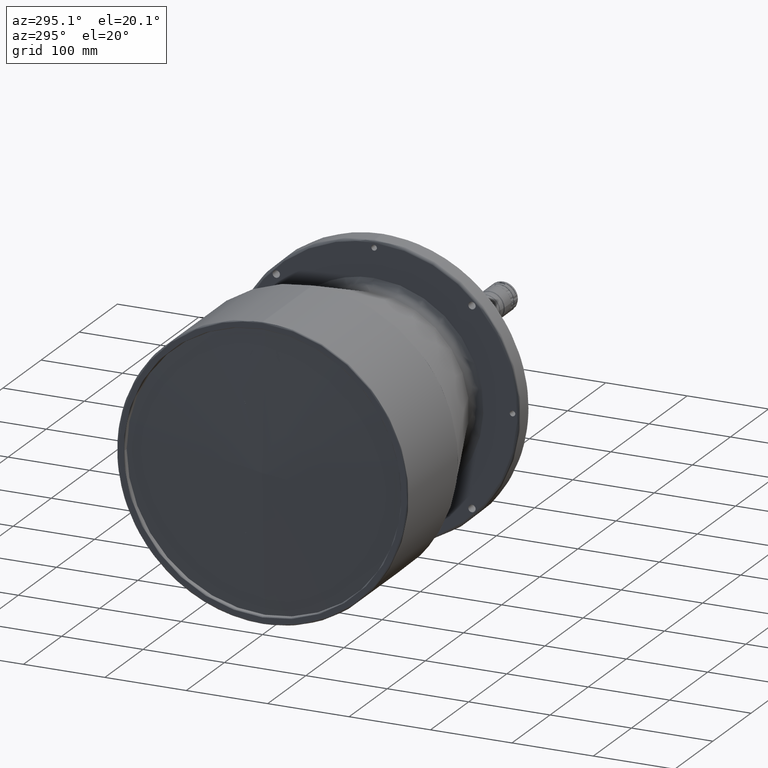
[diagram: clean part render]
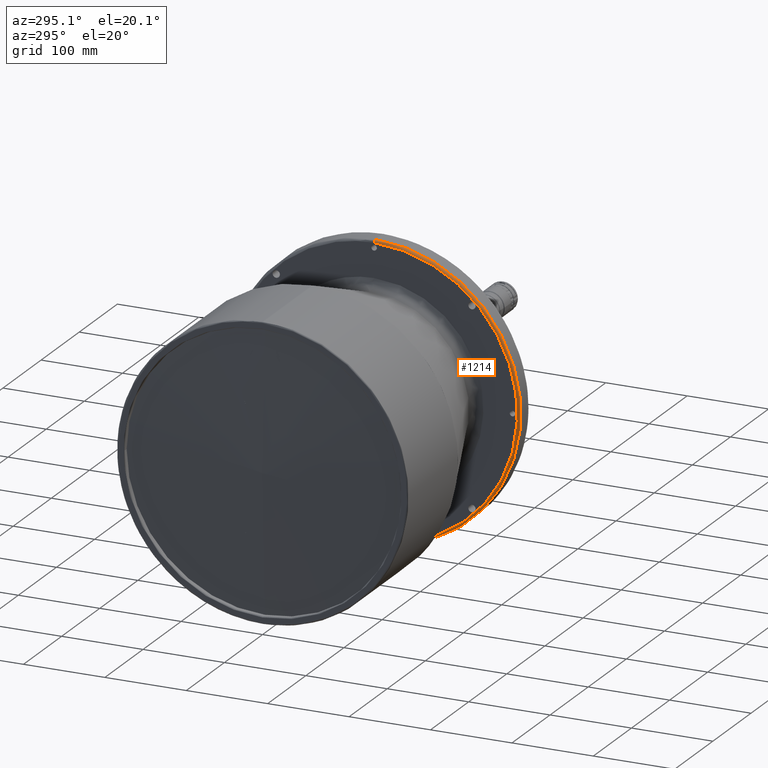
[diagram: same view with one face highlighted and labeled with its STEP entity id]
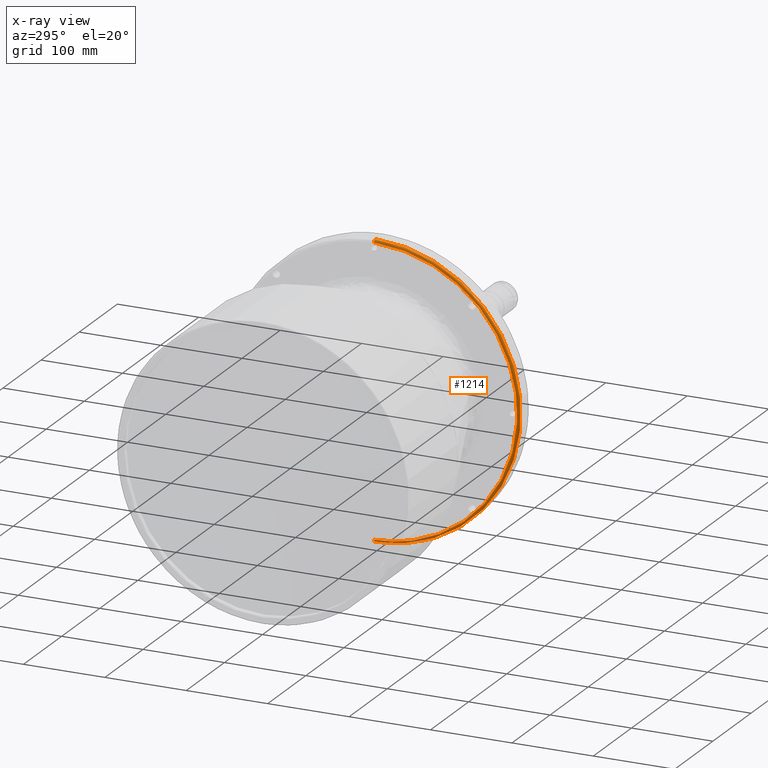
[diagram: x-ray of the same camera — body ghosted, the highlighted face saturated]
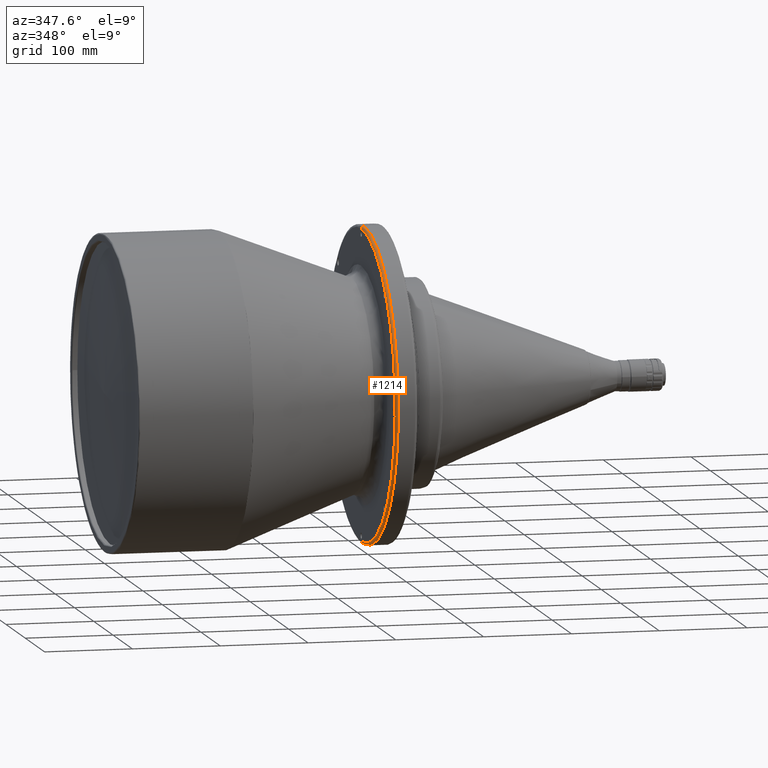
[diagram: same view with one face highlighted and labeled with its STEP entity id]
A machine part, auxiliary view. The second image highlights one B-rep face of the part: STEP entity #1214.
The next image is the same camera in x-ray: the body ghosted, the highlighted face saturated — about 8% of this face is hidden behind the body in this view.
A second angle (auxiliary view) of the same face is appended — the face is thin or edge-on in the first view.
In plain terms, the highlighted face is a freeform B-spline surface patch.
Its self-contained STEP definition (entity closure, byte-faithful):
#250 = CARTESIAN_POINT ( 'NONE',  ( 292.5149875040000300, 0.0000000000000000000, 175.7004997500000100 ) ) ;
#279 = CARTESIAN_POINT ( 'NONE',  ( 295.7995002499999400, 0.0000000000000000000, 178.9850124960000000 ) ) ;
#418 = CARTESIAN_POINT ( 'NONE',  ( 295.4999999986181900, -1.205479461655878100E-008, 179.0000000000917200 ) ) ;
#547 = CARTESIAN_POINT ( 'NONE',  ( 292.4999999999266200, 0.0000000000000000000, -175.9999999659239600 ) ) ;
#922 =( BOUNDED_CURVE ( )  B_SPLINE_CURVE ( 3, ( #547, #7012, #7736, #2991 ),
 .UNSPECIFIED., .F., .F. ) 
 B_SPLINE_CURVE_WITH_KNOTS ( ( 4, 4 ),
 ( 0.06314145699999171300, 0.9368585430000178100 ),
 .UNSPECIFIED. ) 
 CURVE ( )  GEOMETRIC_REPRESENTATION_ITEM ( )  RATIONAL_B_SPLINE_CURVE ( ( 0.9565783021659986000, 0.7697947703959715500, 0.7697947703959734400, 0.9565783021660048100 ) ) 
 REPRESENTATION_ITEM ( '' )  );
#1200 = VERTEX_POINT ( 'NONE', #8176 ) ;
#1205 = ORIENTED_EDGE ( 'NONE', *, *, #3641, .T. ) ;
#1214 = ADVANCED_FACE ( 'NONE', ( #5368 ), #6181, .T. ) ;
#1397 = EDGE_CURVE ( 'NONE', #1200, #3433, #9961, .T. ) ;
#1711 = AXIS2_PLACEMENT_3D ( 'NONE', #5236, #2958, #8388 ) ;
#1719 = CARTESIAN_POINT ( 'NONE',  ( 293.7598387039998900, -358.3793225360000200, -179.1896612679999500 ) ) ;
#1755 = CARTESIAN_POINT ( 'NONE',  ( 292.5149875040000300, -351.4009994999999500, 175.7004997500000300 ) ) ;
#1878 = CARTESIAN_POINT ( 'NONE',  ( 292.4999999998776700, -352.0000000026987000, -176.0000000014150000 ) ) ;
#2027 = CARTESIAN_POINT ( 'NONE',  ( 292.4999999999266200, 0.0000000000000000000, 175.9999999659239600 ) ) ;
#2282 = EDGE_LOOP ( 'NONE', ( #5629, #9703, #1205, #6267 ) ) ;
#2641 = CARTESIAN_POINT ( 'NONE',  ( 292.5149875040000300, -351.4009994999999500, -175.7004997500000300 ) ) ;
#2958 = DIRECTION ( 'NONE',  ( -1.000000000000000000, 3.101181633029123300E-016, -0.0000000000000000000 ) ) ;
#2991 = CARTESIAN_POINT ( 'NONE',  ( 295.4999999986181900, -1.835675685212213800E-008, -179.0000000000917200 ) ) ;
#3178 = EDGE_CURVE ( 'NONE', #6831, #6299, #9557, .T. ) ;
#3328 = CARTESIAN_POINT ( 'NONE',  ( 293.7598387040000000, 0.0000000000000000000, -179.1896612679999500 ) ) ;
#3433 = VERTEX_POINT ( 'NONE', #418 ) ;
#3641 = EDGE_CURVE ( 'NONE', #3433, #6831, #5855, .T. ) ;
#3790 = CARTESIAN_POINT ( 'NONE',  ( 292.4999999999266200, 0.0000000000000000000, -175.9999999659239600 ) ) ;
#4118 = CARTESIAN_POINT ( 'NONE',  ( 295.7995002499999400, -357.9700249919999400, 178.9850124960000000 ) ) ;
#4469 = CARTESIAN_POINT ( 'NONE',  ( 292.4999999999266200, 0.0000000000000000000, 175.9999999659239600 ) ) ;
#4528 = CARTESIAN_POINT ( 'NONE',  ( 293.7426406867692800, 0.0000000000000000000, 178.9999999990893100 ) ) ;
#4909 = CARTESIAN_POINT ( 'NONE',  ( 292.3103387319999300, 0.0000000000000000000, -177.7401612959999700 ) ) ;
#5236 = CARTESIAN_POINT ( 'NONE',  ( 295.4999999986181900, 0.0000000000000000000, 0.0000000000000000000 ) ) ;
#5368 = FACE_OUTER_BOUND ( 'NONE', #2282, .T. ) ;
#5629 = ORIENTED_EDGE ( 'NONE', *, *, #6341, .T. ) ;
#5669 = CARTESIAN_POINT ( 'NONE',  ( 293.7598387040000000, 0.0000000000000000000, 179.1896612679999500 ) ) ;
#5855 =( BOUNDED_CURVE ( )  B_SPLINE_CURVE ( 3, ( #9285, #4528, #8364, #2027 ),
 .UNSPECIFIED., .F., .T. ) 
 B_SPLINE_CURVE_WITH_KNOTS ( ( 4, 4 ),
 ( 0.06314145699999163000, 0.9368585430000008200 ),
 .UNSPECIFIED. ) 
 CURVE ( )  GEOMETRIC_REPRESENTATION_ITEM ( )  RATIONAL_B_SPLINE_CURVE ( ( 0.9565783021659986000, 0.7697947703959752100, 0.7697947703959734400, 0.9565783021659939300 ) ) 
 REPRESENTATION_ITEM ( '' )  );
#6181 =( BOUNDED_SURFACE ( )  B_SPLINE_SURFACE ( 3, 3, ( 
 ( #279, #4118, #8084, #8144 ),
 ( #5669, #9721, #1719, #3328 ),
 ( #7303, #8863, #7393, #4909 ),
 ( #250, #1755, #2641, #9654 ) ),
 .UNSPECIFIED., .F., .F., .F. ) 
 B_SPLINE_SURFACE_WITH_KNOTS ( ( 4, 4 ),
 ( 4, 4 ),
 ( 0.0000000000000000000, 1.000000000000000000 ),
 ( 0.0000000000000000000, 1.000000000000000000 ),
 .UNSPECIFIED. ) 
 GEOMETRIC_REPRESENTATION_ITEM ( )  RATIONAL_B_SPLINE_SURFACE ( (
 ( 1.000000000000000000, 0.3333333333333330400, 0.3333333333333330400, 1.000000000000000000),
 ( 0.7553208711179730800, 0.2517736237059909900, 0.2517736237059909900, 0.7553208711179730800),
 ( 0.7553208711179730800, 0.2517736237059909900, 0.2517736237059909900, 0.7553208711179730800),
 ( 1.000000000000000000, 0.3333333333333330400, 0.3333333333333330400, 1.000000000000000000) ) ) 
 REPRESENTATION_ITEM ( '' )  SURFACE ( )  );
#6267 = ORIENTED_EDGE ( 'NONE', *, *, #3178, .T. ) ;
#6299 = VERTEX_POINT ( 'NONE', #3790 ) ;
#6341 = EDGE_CURVE ( 'NONE', #6299, #1200, #922, .T. ) ;
#6831 = VERTEX_POINT ( 'NONE', #4469 ) ;
#7012 = CARTESIAN_POINT ( 'NONE',  ( 292.5000000009105200, 0.0000000000000000000, -177.7573593132306700 ) ) ;
#7303 = CARTESIAN_POINT ( 'NONE',  ( 292.3103387319999300, 0.0000000000000000000, 177.7401612959999700 ) ) ;
#7393 = CARTESIAN_POINT ( 'NONE',  ( 292.3103387319999300, -355.4803225909999500, -177.7401612959999100 ) ) ;
#7640 = CARTESIAN_POINT ( 'NONE',  ( 292.4999999998776700, -352.0000000026987000, 176.0000000014150000 ) ) ;
#7736 = CARTESIAN_POINT ( 'NONE',  ( 293.7426406867693300, 0.0000000000000000000, -178.9999999990894300 ) ) ;
#8084 = CARTESIAN_POINT ( 'NONE',  ( 295.7995002499999400, -357.9700249919999400, -178.9850124960000000 ) ) ;
#8144 = CARTESIAN_POINT ( 'NONE',  ( 295.7995002499999400, 0.0000000000000000000, -178.9850124960000000 ) ) ;
#8176 = CARTESIAN_POINT ( 'NONE',  ( 295.4999999986181900, -1.835675685212213800E-008, -179.0000000000917200 ) ) ;
#8364 = CARTESIAN_POINT ( 'NONE',  ( 292.5000000009106300, 0.0000000000000000000, 177.7573593132308100 ) ) ;
#8388 = DIRECTION ( 'NONE',  ( -3.101181633029044900E-016, -1.000000000000000000, 0.0000000000000000000 ) ) ;
#8863 = CARTESIAN_POINT ( 'NONE',  ( 292.3103387319999300, -355.4803225909999500, 177.7401612959999100 ) ) ;
#9249 = CARTESIAN_POINT ( 'NONE',  ( 292.4999999999266200, 0.0000000000000000000, 175.9999999659239600 ) ) ;
#9285 = CARTESIAN_POINT ( 'NONE',  ( 295.4999999986181900, -1.205479461655878000E-008, 179.0000000000917200 ) ) ;
#9557 =( BOUNDED_CURVE ( )  B_SPLINE_CURVE ( 3, ( #9249, #7640, #1878, #9777 ),
 .UNSPECIFIED., .F., .T. ) 
 B_SPLINE_CURVE_WITH_KNOTS ( ( 4, 4 ),
 ( 0.0000000000000000000, 1.000000000000000000 ),
 .UNSPECIFIED. ) 
 CURVE ( )  GEOMETRIC_REPRESENTATION_ITEM ( )  RATIONAL_B_SPLINE_CURVE ( ( 0.9565783021616154300, 0.3188594340538715200, 0.3188594340538715200, 0.9565783021616154300 ) ) 
 REPRESENTATION_ITEM ( '' )  );
#9654 = CARTESIAN_POINT ( 'NONE',  ( 292.5149875040000300, 0.0000000000000000000, -175.7004997500000100 ) ) ;
#9703 = ORIENTED_EDGE ( 'NONE', *, *, #1397, .T. ) ;
#9721 = CARTESIAN_POINT ( 'NONE',  ( 293.7598387039998900, -358.3793225360000200, 179.1896612679999500 ) ) ;
#9777 = CARTESIAN_POINT ( 'NONE',  ( 292.4999999999266200, 0.0000000000000000000, -175.9999999659239600 ) ) ;
#9961 = CIRCLE ( 'NONE', #1711, 179.0000000001223000 ) ;